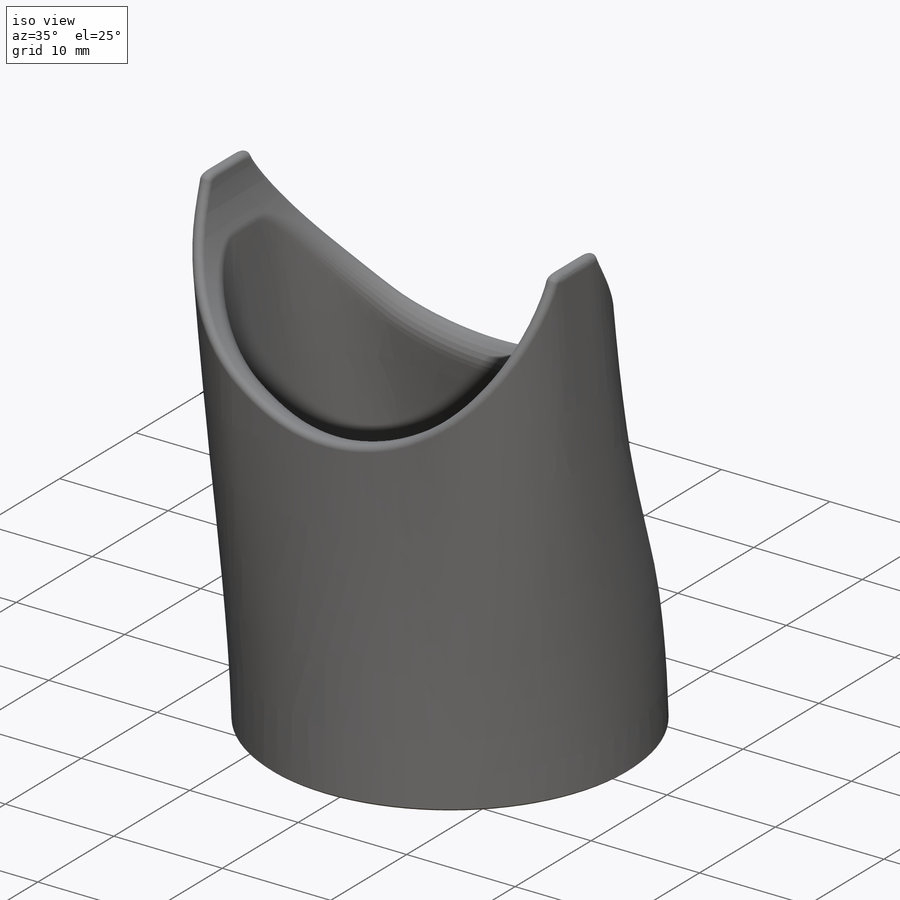
[diagram: iso view]
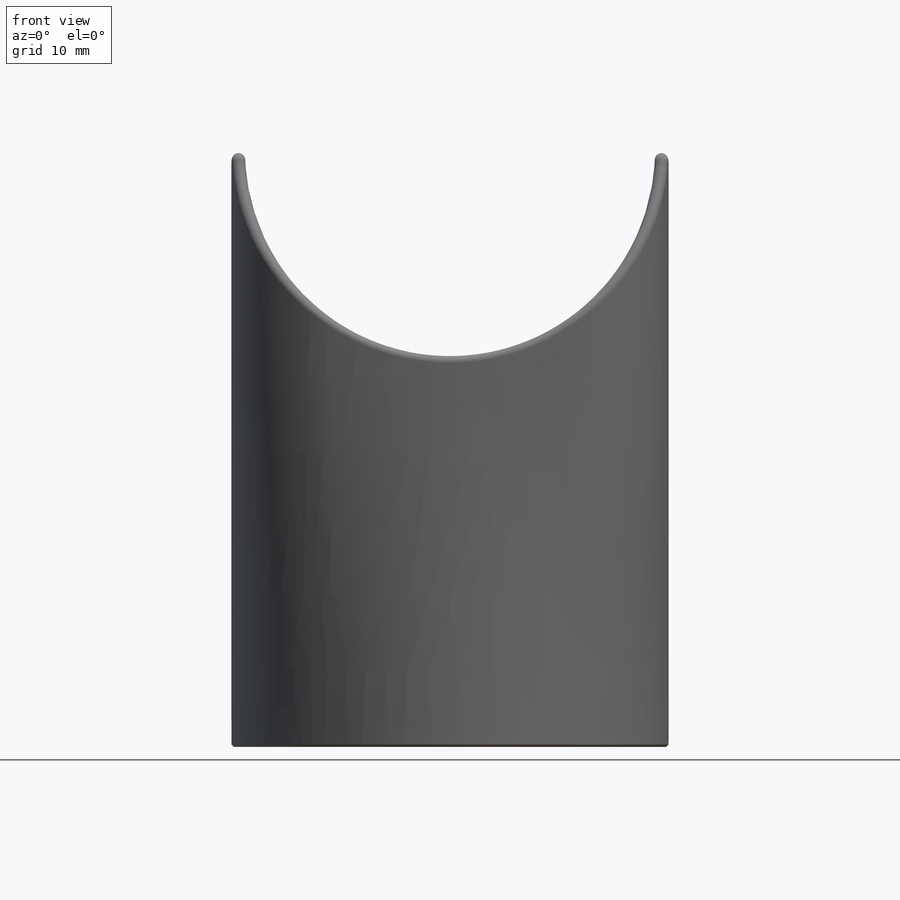
[diagram: front view]
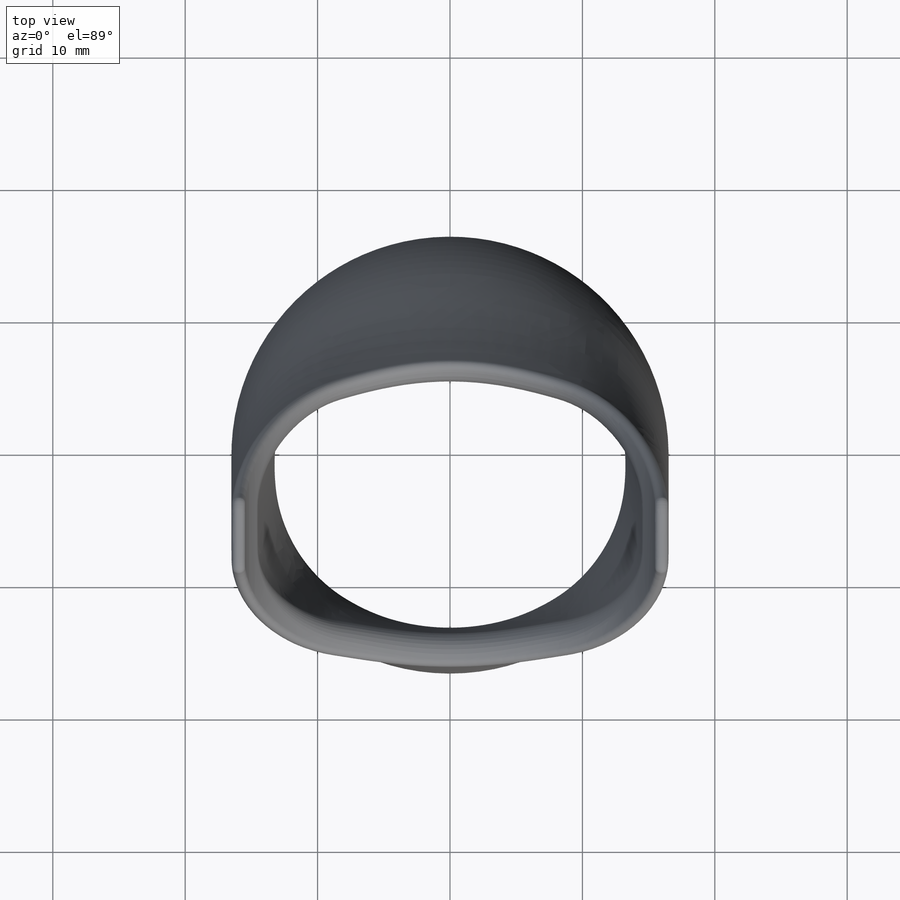
[diagram: top view]
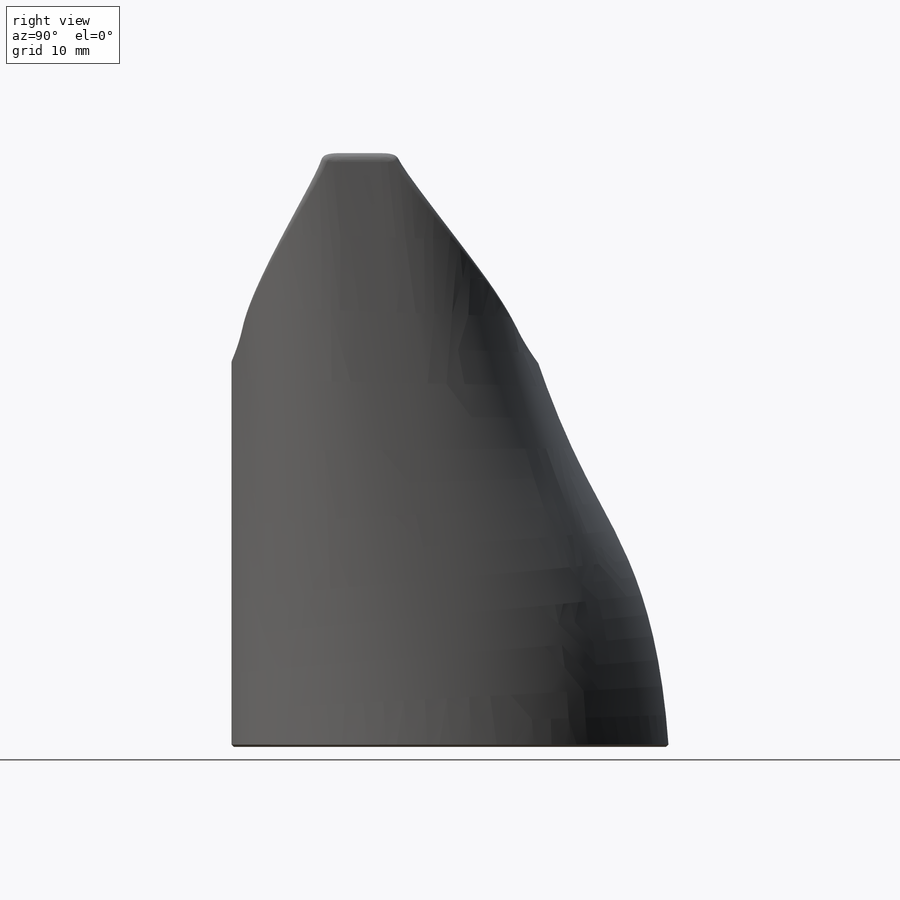
[diagram: right view]
SOLIDWORKS PART (.sldprt)
format: sldprt  version: not decoded by parser v0  size: 648,704 bytes
history: native  units: mm
features: sketch x8, fillet x4, chamfer x2, material x1, plane x1, cut_revolve x1, cut_extrude x1 (+11 scaffold rows collapsed)
feature tree (29):
  scaffold x11  (default folders/planes/origin — collapsed)
  material  "Material <not specified>"
  sketch  "Sketch1"  dims[D1=~11.552636mm]
  plane  "Plane1"  Offset=45mm
  sketch  "Sketch3"  dims[D1=8.0mm D2=1.8mm]
  sketch  "Sketch4"
  sketch  "Sketch3<6>"
  sketch  "Sketch1<6>"
  sketch  "Sketch4<4>"
  sketch  "Sketch5"  dims[D1=13.97mm]
  cut_revolve  "Cut-Revolve4"  Angle=360deg
  fillet  "Fillet1"  Radius=20mm
  fillet  "Fillet2"  Radius=0.8mm
  chamfer  "Chamfer1"  Distance=0.2mm Angle=45deg
  chamfer  "Chamfer2"  Distance=5mm Angle=5deg
  sketch  "Sketch6"
  cut_extrude  "Cut-Extrude1"  [1 undecoded]
  fillet  "Fillet3"  Radius=2mm
  fillet  "Fillet4"  Radius=0.5mm
decode coverage: 10 of 16 modeling features carry decoded parameters
note: ~ marks probable driven/reference dimensions
note: 1 parameter value undecoded
note: suppression state not decoded; provenance and decode notes live in map.json
